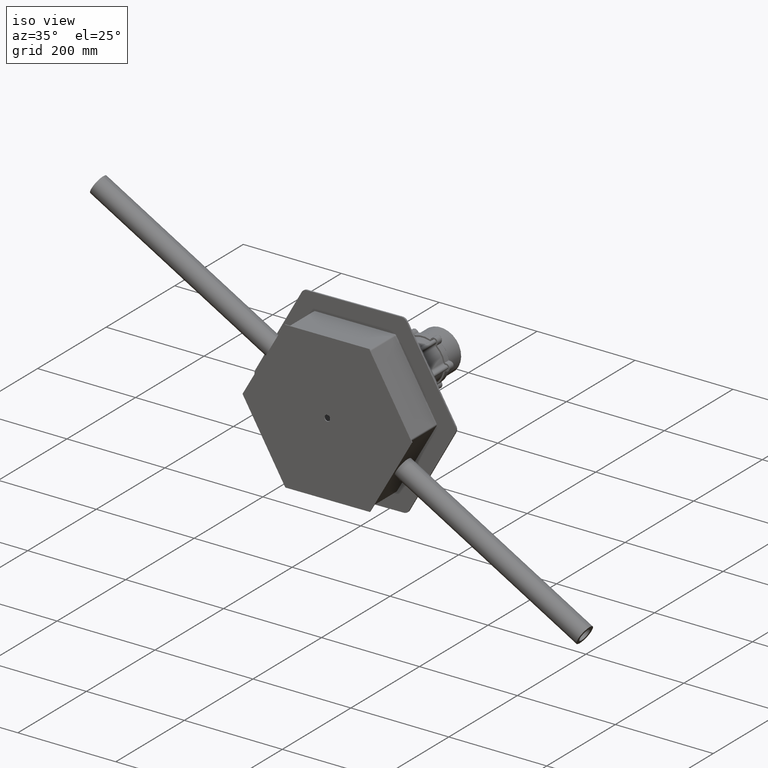
[diagram: clean part render]
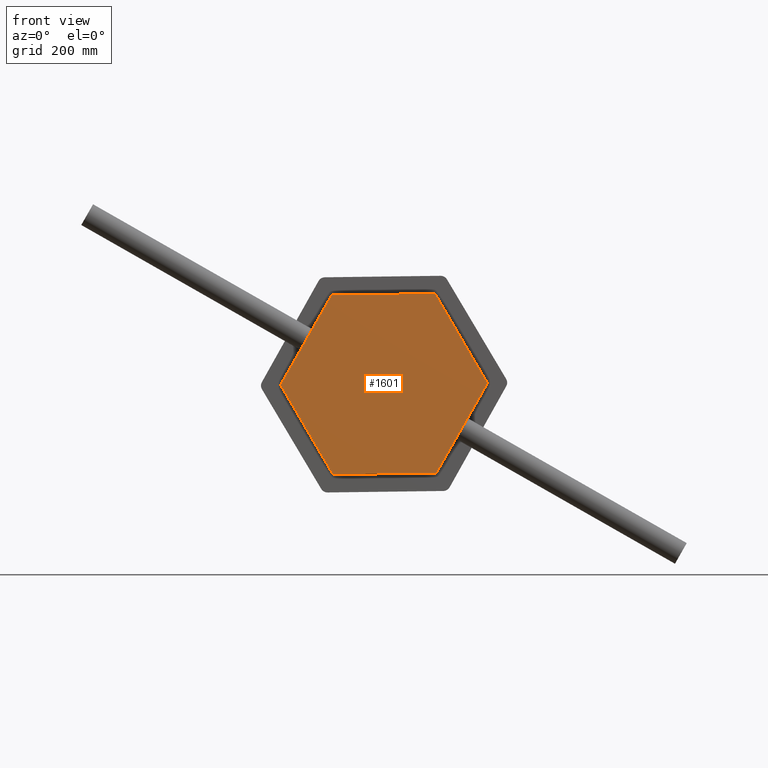
[diagram: tour spotlight — one face highlighted and labeled with its STEP entity id]
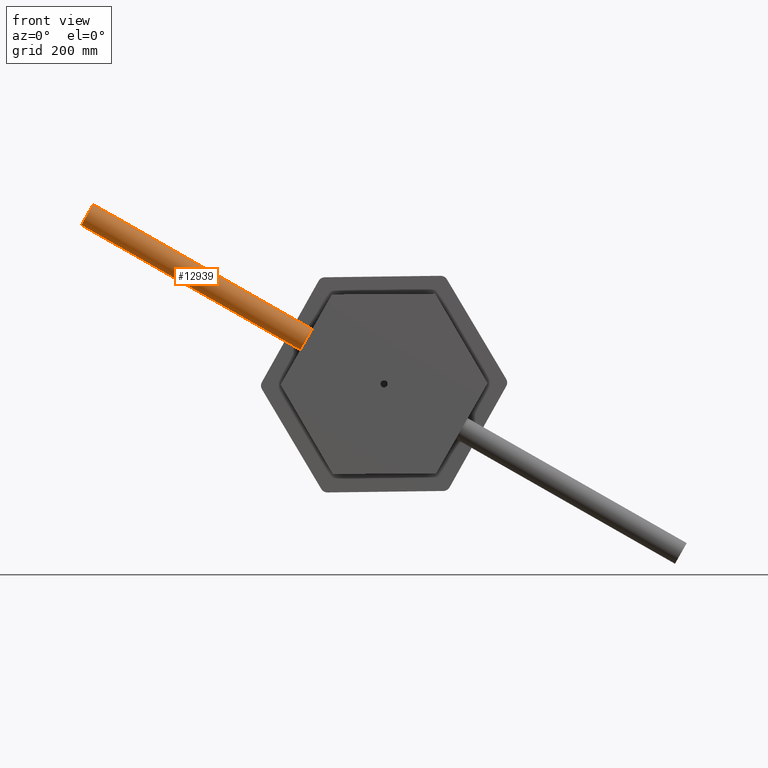
[diagram: tour spotlight — one face highlighted and labeled with its STEP entity id]
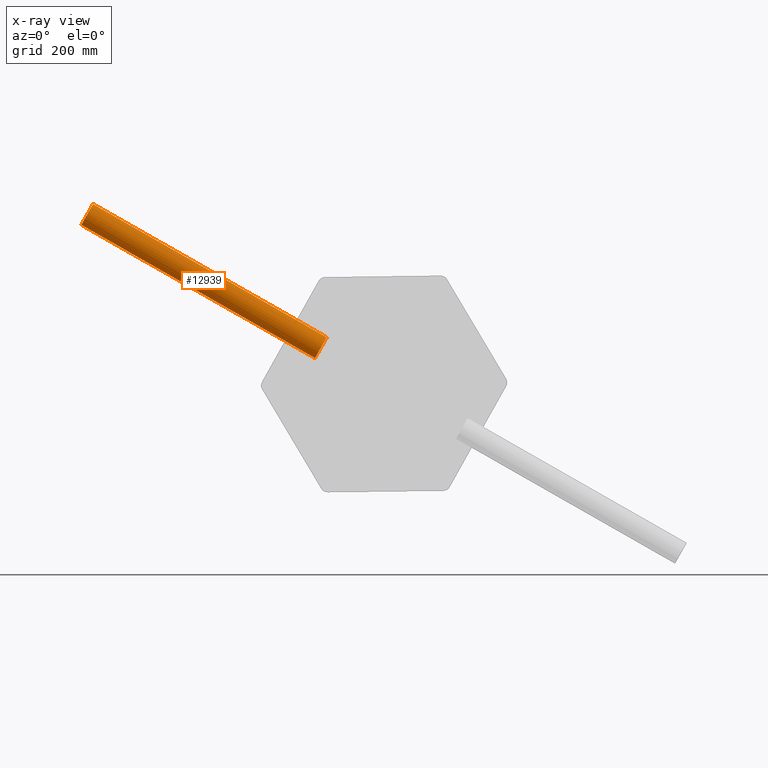
[diagram: x-ray of the same camera — body ghosted, this tour face saturated]
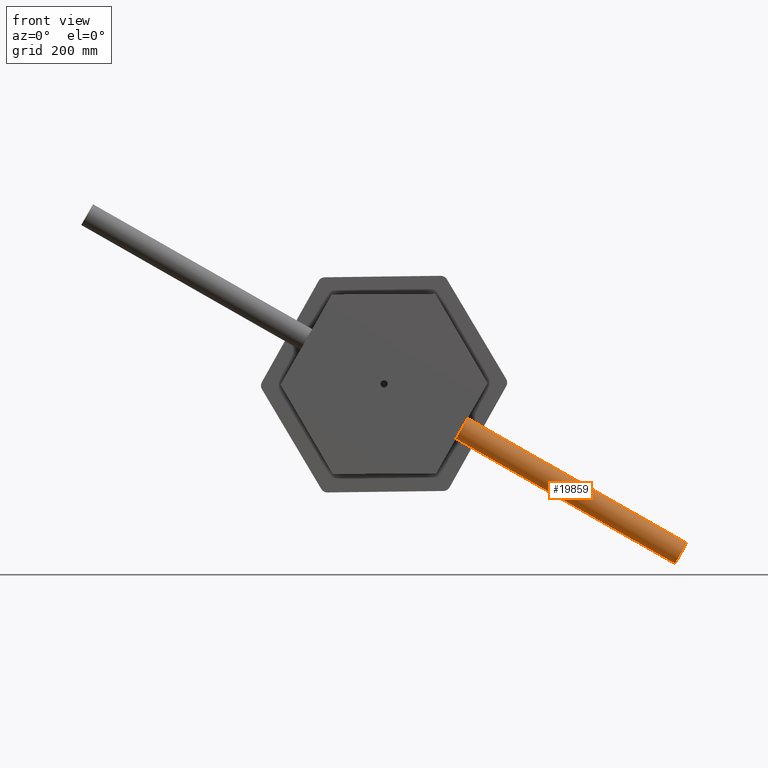
[diagram: tour spotlight — one face highlighted and labeled with its STEP entity id]
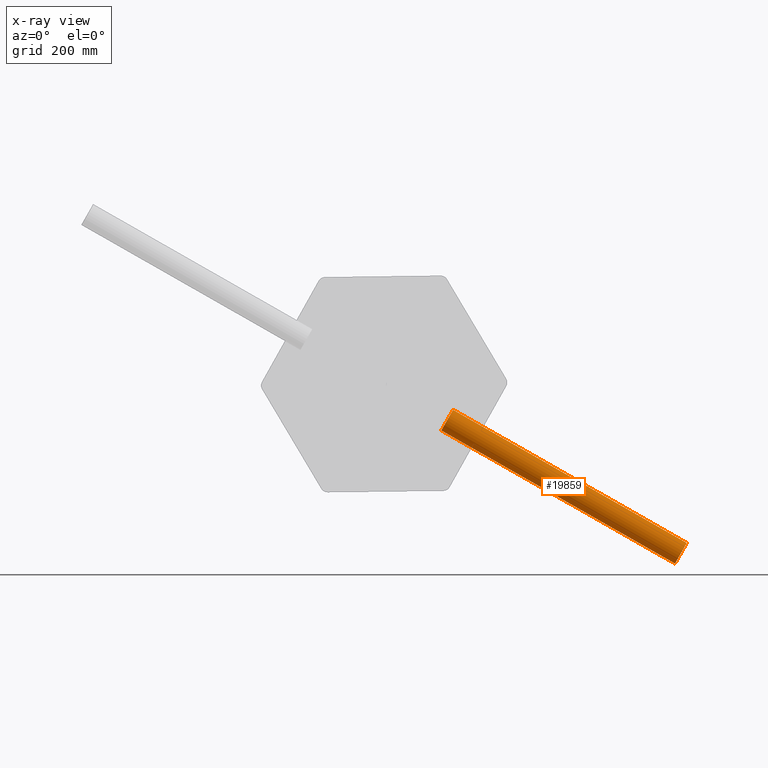
[diagram: x-ray of the same camera — body ghosted, this tour face saturated]
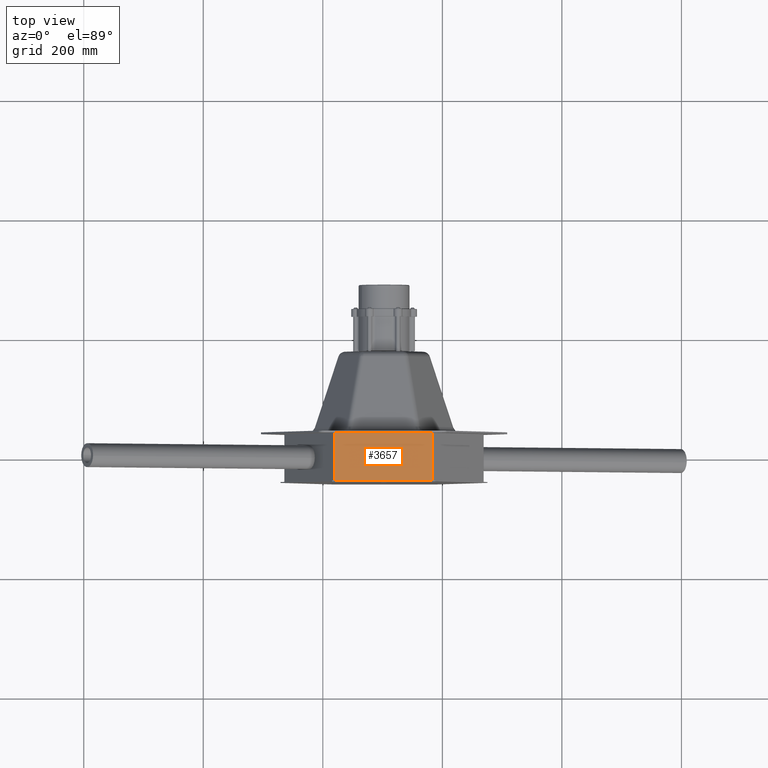
[diagram: tour spotlight — one face highlighted and labeled with its STEP entity id]
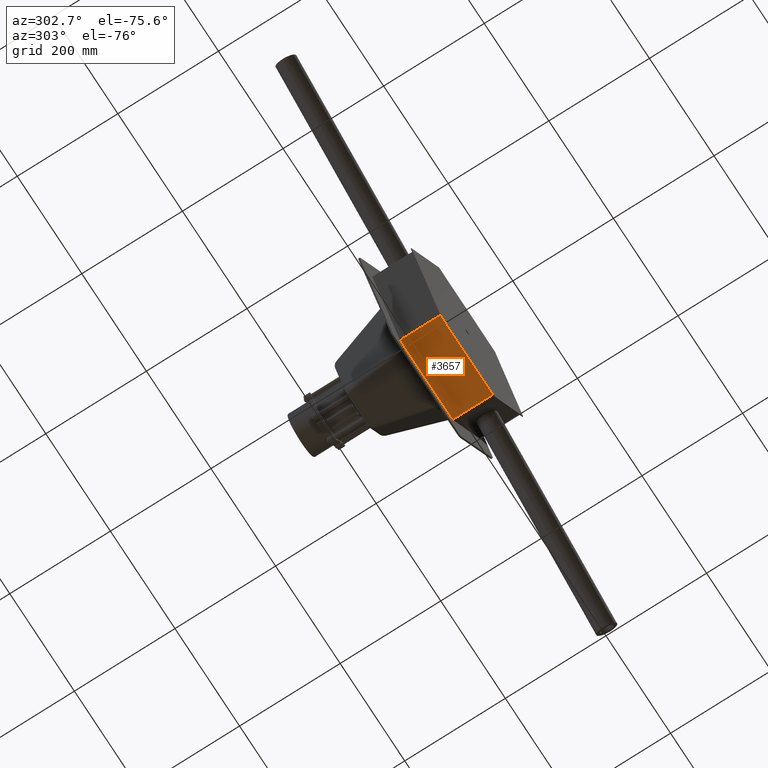
[diagram: tour spotlight — one face highlighted and labeled with its STEP entity id]
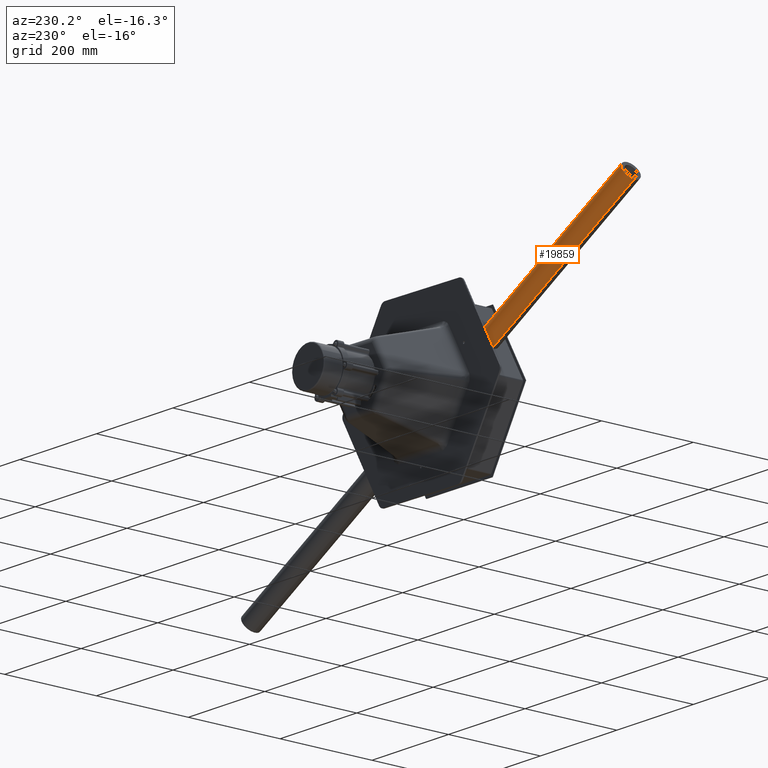
[diagram: tour spotlight — one face highlighted and labeled with its STEP entity id]
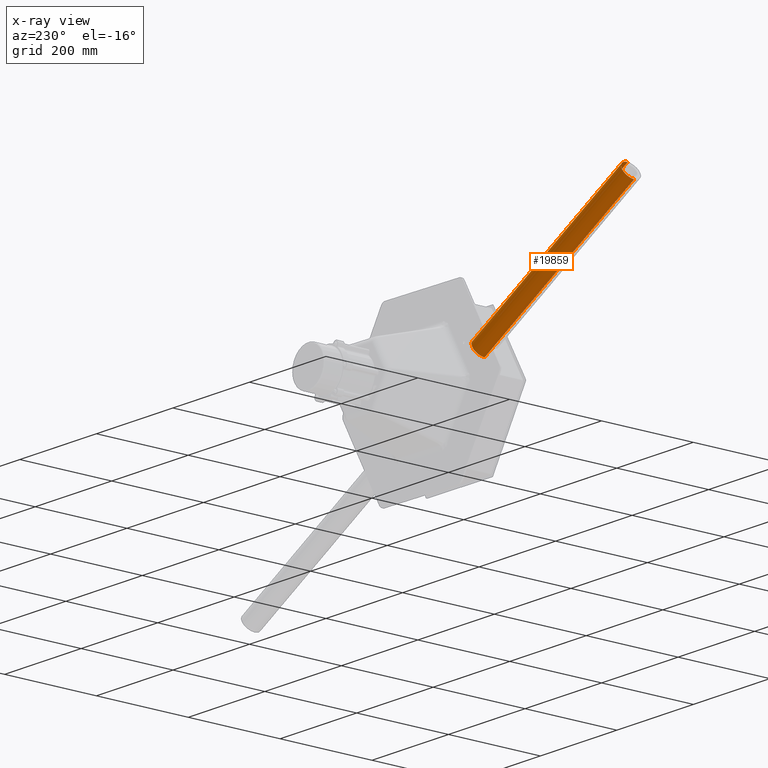
[diagram: x-ray of the same camera — body ghosted, this tour face saturated]
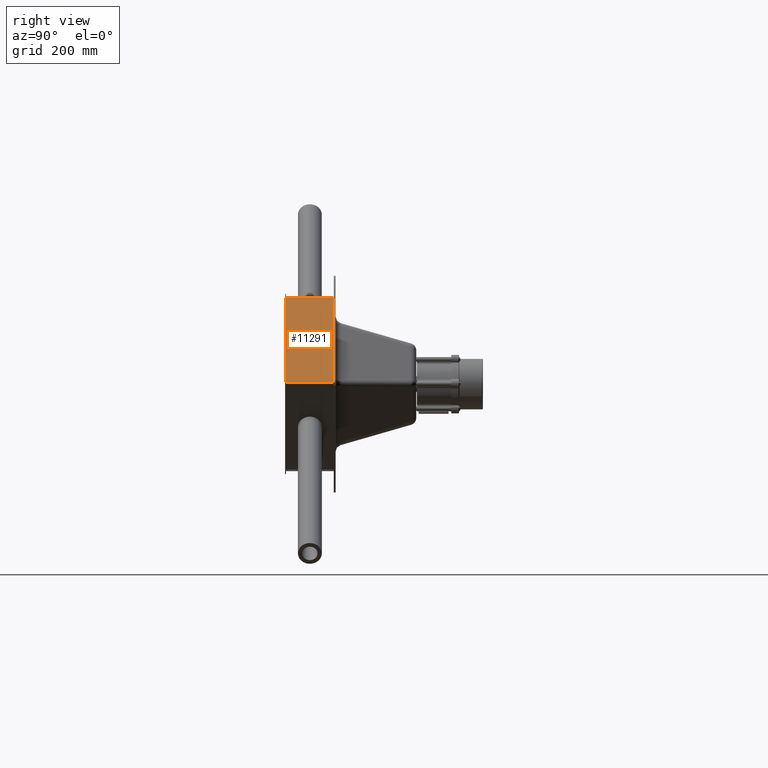
[diagram: tour spotlight — one face highlighted and labeled with its STEP entity id]
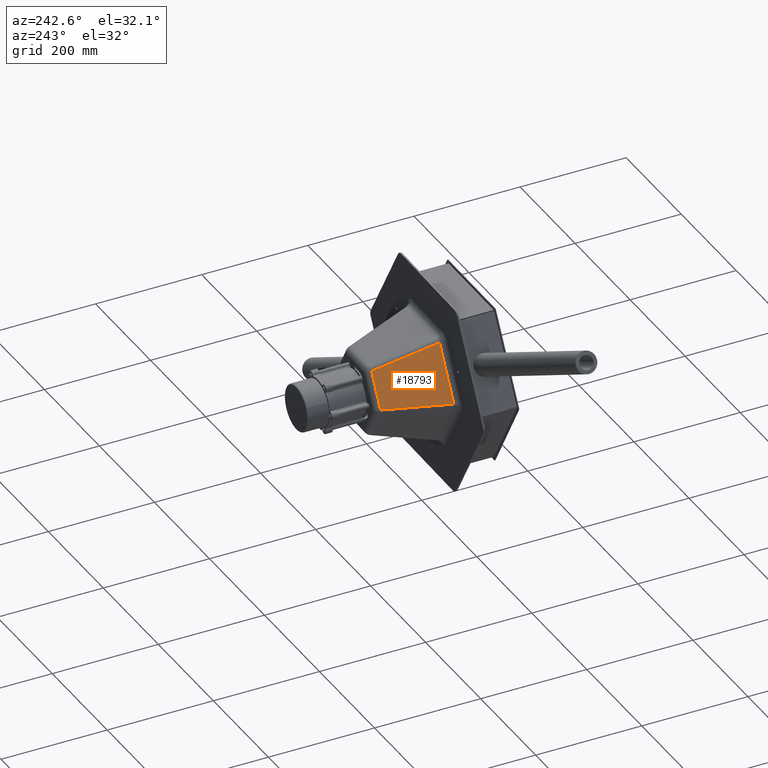
[diagram: tour spotlight — one face highlighted and labeled with its STEP entity id]
A machine part: a face-by-face anatomy tour. The part has 1507 B-rep faces; the first image is the clean iso view, then the 8 largest visible faces are spotlighted one at a time (largest first), each with its STEP entity span.

Face 1 — front view, entity #1601. In plain terms, the highlighted planar face has unit normal (0, -1, 0).
Definition (entity closure, byte-faithful):
#312 = VERTEX_POINT ( 'NONE', #700 ) ;
#415 = VECTOR ( 'NONE', #31654, 1000.000000000000000 ) ;
#700 = CARTESIAN_POINT ( 'NONE',  ( 173.1145889543301735, 1.252467087092951958, 1.500000000000000000 ) ) ;
#1329 = ORIENTED_EDGE ( 'NONE', *, *, #28425, .T. ) ;
#1601 = ADVANCED_FACE ( 'NONE', ( #6149, #25974 ), #9374, .T. ) ;
#1761 = EDGE_CURVE ( 'NONE', #25530, #30548, #21072, .T. ) ;
#2624 = CARTESIAN_POINT ( 'NONE',  ( -85.68579531361250190, -150.7332187034791673, 1.500000000000000000 ) ) ;
#3524 = DIRECTION ( 'NONE',  ( 1.000000000000000000, 0.0000000000000000000, 0.0000000000000000000 ) ) ;
#3597 = DIRECTION ( 'NONE',  ( 0.0000000000000000000, 0.0000000000000000000, 1.000000000000000000 ) ) ;
#3629 = CARTESIAN_POINT ( 'NONE',  ( 0.0000000000000000000, 0.0000000000000000000, 1.500000000000000000 ) ) ;
#3924 = DIRECTION ( 'NONE',  ( -0.5048689265369953327, 0.8631960188841130144, 0.0000000000000000000 ) ) ;
#4722 = CARTESIAN_POINT ( 'NONE',  ( -87.05746031819400343, 149.7604330572676474, 1.500000000000000000 ) ) ;
#4822 = LINE ( 'NONE', #2624, #5659 ) ;
#5058 = VECTOR ( 'NONE', #10942, 1000.000000000000114 ) ;
#5630 = LINE ( 'NONE', #25156, #32308 ) ;
#5659 = VECTOR ( 'NONE', #20749, 1000.000000000000114 ) ;
#5678 = CARTESIAN_POINT ( 'NONE',  ( -87.05746031819400343, 149.7604330572676474, 1.500000000000000000 ) ) ;
#6149 = FACE_OUTER_BOUND ( 'NONE', #18039, .T. ) ;
#6192 = CARTESIAN_POINT ( 'NONE',  ( 85.68579531361253032, 150.7332187034791673, 1.500000000000000000 ) ) ;
#6794 = ORIENTED_EDGE ( 'NONE', *, *, #28026, .T. ) ;
#7681 = ORIENTED_EDGE ( 'NONE', *, *, #1761, .F. ) ;
#7917 = ORIENTED_EDGE ( 'NONE', *, *, #24260, .F. ) ;
#8221 = VERTEX_POINT ( 'NONE', #8488 ) ;
#8488 = CARTESIAN_POINT ( 'NONE',  ( -173.1145889543301735, -1.252467087093037001, 1.500000000000000000 ) ) ;
#8946 = DIRECTION ( 'NONE',  ( 1.000000000000000000, 0.0000000000000000000, -0.0000000000000000000 ) ) ;
#9053 = LINE ( 'NONE', #18813, #415 ) ;
#9062 = DIRECTION ( 'NONE',  ( 0.0000000000000000000, 0.0000000000000000000, 1.000000000000000000 ) ) ;
#9140 = DIRECTION ( 'NONE',  ( 0.0000000000000000000, -0.0000000000000000000, 1.000000000000000000 ) ) ;
#9374 = PLANE ( 'NONE',  #26909 ) ;
#9402 = CARTESIAN_POINT ( 'NONE',  ( 0.0000000000000000000, 0.0000000000000000000, 1.500000000000000000 ) ) ;
#10202 = LINE ( 'NONE', #21103, #29931 ) ;
#10850 = VERTEX_POINT ( 'NONE', #4722 ) ;
#10901 = DIRECTION ( 'NONE',  ( -0.9999841440677316173, -0.005631306520363359158, -0.0000000000000000000 ) ) ;
#10927 = ORIENTED_EDGE ( 'NONE', *, *, #25354, .T. ) ;
#10942 = DIRECTION ( 'NONE',  ( -0.4951152175307385606, -0.8688273254044726057, 0.0000000000000000000 ) ) ;
#11114 = VERTEX_POINT ( 'NONE', #6192 ) ;
#11919 = CARTESIAN_POINT ( 'NONE',  ( 87.05746031819408870, -149.7604330572676474, 1.500000000000000000 ) ) ;
#12410 = AXIS2_PLACEMENT_3D ( 'NONE', #3629, #3597, #3524 ) ;
#14057 = ORIENTED_EDGE ( 'NONE', *, *, #19550, .T. ) ;
#16313 = CARTESIAN_POINT ( 'NONE',  ( -85.68579531361250190, -150.7332187034791673, 1.500000000000000000 ) ) ;
#16859 = ORIENTED_EDGE ( 'NONE', *, *, #32508, .T. ) ;
#17674 = ORIENTED_EDGE ( 'NONE', *, *, #28861, .T. ) ;
#18039 = EDGE_LOOP ( 'NONE', ( #6794, #14057, #17674, #1329, #16859, #10927 ) ) ;
#18176 = CIRCLE ( 'NONE', #23547, 6.000000000000002665 ) ;
#18813 = CARTESIAN_POINT ( 'NONE',  ( 87.05746031819408870, -149.7604330572676474, 1.500000000000000000 ) ) ;
#19162 = VECTOR ( 'NONE', #3924, 1000.000000000000000 ) ;
#19421 = CARTESIAN_POINT ( 'NONE',  ( 173.1145889543301735, 1.252467087092951958, 1.500000000000000000 ) ) ;
#19550 = EDGE_CURVE ( 'NONE', #10850, #8221, #27332, .T. ) ;
#20076 = CARTESIAN_POINT ( 'NONE',  ( -6.000000000000002665, 0.0000000000000000000, 1.500000000000000000 ) ) ;
#20749 = DIRECTION ( 'NONE',  ( 0.9999841440677316173, 0.005631306520363357423, 0.0000000000000000000 ) ) ;
#21072 = CIRCLE ( 'NONE', #12410, 6.000000000000002665 ) ;
#21103 = CARTESIAN_POINT ( 'NONE',  ( -87.05746031819400343, 149.7604330572676474, 1.500000000000000000 ) ) ;
#21172 = VERTEX_POINT ( 'NONE', #16313 ) ;
#22464 = EDGE_LOOP ( 'NONE', ( #7681, #7917 ) ) ;
#23547 = AXIS2_PLACEMENT_3D ( 'NONE', #24505, #9062, #27110 ) ;
#23764 = VERTEX_POINT ( 'NONE', #11919 ) ;
#24260 = EDGE_CURVE ( 'NONE', #30548, #25530, #18176, .T. ) ;
#24505 = CARTESIAN_POINT ( 'NONE',  ( 0.0000000000000000000, 0.0000000000000000000, 1.500000000000000000 ) ) ;
#25156 = CARTESIAN_POINT ( 'NONE',  ( -173.1145889543301735, -1.252467087093037001, 1.500000000000000000 ) ) ;
#25354 = EDGE_CURVE ( 'NONE', #312, #11114, #32880, .T. ) ;
#25530 = VERTEX_POINT ( 'NONE', #20076 ) ;
#25974 = FACE_BOUND ( 'NONE', #22464, .T. ) ;
#26909 = AXIS2_PLACEMENT_3D ( 'NONE', #9402, #9140, #8946 ) ;
#27110 = DIRECTION ( 'NONE',  ( 1.000000000000000000, 0.0000000000000000000, 0.0000000000000000000 ) ) ;
#27332 = LINE ( 'NONE', #5678, #5058 ) ;
#27870 = DIRECTION ( 'NONE',  ( 0.5048689265369956658, -0.8631960188841127923, 0.0000000000000000000 ) ) ;
#28026 = EDGE_CURVE ( 'NONE', #11114, #10850, #10202, .T. ) ;
#28425 = EDGE_CURVE ( 'NONE', #21172, #23764, #4822, .T. ) ;
#28861 = EDGE_CURVE ( 'NONE', #8221, #21172, #5630, .T. ) ;
#29931 = VECTOR ( 'NONE', #10901, 1000.000000000000114 ) ;
#30047 = CARTESIAN_POINT ( 'NONE',  ( 6.000000000000002665, 7.347880794884122694E-16, 1.500000000000000000 ) ) ;
#30548 = VERTEX_POINT ( 'NONE', #30047 ) ;
#31654 = DIRECTION ( 'NONE',  ( 0.4951152175307384495, 0.8688273254044727167, 0.0000000000000000000 ) ) ;
#32308 = VECTOR ( 'NONE', #27870, 1000.000000000000227 ) ;
#32508 = EDGE_CURVE ( 'NONE', #23764, #312, #9053, .T. ) ;
#32880 = LINE ( 'NONE', #19421, #19162 ) ;

Face 2 — front view, entity #12939. An x-ray twin of the same camera follows (body ghosted, this face saturated) — the face is partly hidden behind the body. In plain terms, the highlighted cylindrical surface (edge-blend (fillet) strip) has radius 20 mm, axis along (0.8688, -0, -0.4951).
Definition (entity closure, byte-faithful):
#1495 = DIRECTION ( 'NONE',  ( 1.000000000000000000, -7.632783294297947518E-17, -3.330669073875467649E-16 ) ) ;
#1514 = VERTEX_POINT ( 'NONE', #13346 ) ;
#2217 = VECTOR ( 'NONE', #5816, 1000.000000000000000 ) ;
#2707 = DIRECTION ( 'NONE',  ( 4.996003610813205418E-16, -2.983724378680108695E-16, -1.000000000000000000 ) ) ;
#4396 = AXIS2_PLACEMENT_3D ( 'NONE', #20592, #25820, #10267 ) ;
#5045 = AXIS2_PLACEMENT_3D ( 'NONE', #24814, #9380, #27420 ) ;
#5816 = DIRECTION ( 'NONE',  ( 4.996003610813205418E-16, -2.983724378680108695E-16, -1.000000000000000000 ) ) ;
#6263 = VECTOR ( 'NONE', #2707, 1000.000000000000000 ) ;
#7638 = EDGE_LOOP ( 'NONE', ( #18530, #25377, #9545, #11129 ) ) ;
#8149 = CARTESIAN_POINT ( 'NONE',  ( 20.00000000000000000, 6.562792259337033289E-14, 9.992007221626407286E-15 ) ) ;
#8433 = VERTEX_POINT ( 'NONE', #29789 ) ;
#9380 = DIRECTION ( 'NONE',  ( -4.996003610813205418E-16, 2.983724378680108695E-16, 1.000000000000000000 ) ) ;
#9545 = ORIENTED_EDGE ( 'NONE', *, *, #17151, .T. ) ;
#10267 = DIRECTION ( 'NONE',  ( -1.000000000000000000, 7.632783294297908075E-17, 0.0000000000000000000 ) ) ;
#11129 = ORIENTED_EDGE ( 'NONE', *, *, #15344, .T. ) ;
#11548 = EDGE_CURVE ( 'NONE', #8433, #24160, #16862, .T. ) ;
#12669 = EDGE_CURVE ( 'NONE', #1514, #8433, #15602, .T. ) ;
#12939 = ADVANCED_FACE ( 'NONE', ( #28115 ), #18811, .T. ) ;
#13346 = CARTESIAN_POINT ( 'NONE',  ( -20.00000000000022382, 6.623174231279415408E-14, 450.0000000000000000 ) ) ;
#15344 = EDGE_CURVE ( 'NONE', #30564, #24160, #29826, .T. ) ;
#15602 = CIRCLE ( 'NONE', #5045, 20.00000000000001066 ) ;
#16862 = LINE ( 'NONE', #26511, #2217 ) ;
#17061 = DIRECTION ( 'NONE',  ( -4.996003610813205418E-16, 2.983724378680108695E-16, 1.000000000000000000 ) ) ;
#17151 = EDGE_CURVE ( 'NONE', #1514, #30564, #20796, .T. ) ;
#18530 = ORIENTED_EDGE ( 'NONE', *, *, #11548, .F. ) ;
#18811 = CYLINDRICAL_SURFACE ( 'NONE', #4396, 20.00000000000001066 ) ;
#20592 = CARTESIAN_POINT ( 'NONE',  ( -2.220446049250313081E-13, 1.318389841742373392E-13, 450.0000000000000000 ) ) ;
#20796 = LINE ( 'NONE', #20818, #6263 ) ;
#20818 = CARTESIAN_POINT ( 'NONE',  ( -20.00000000000023448, 1.333655408330969294E-13, 450.0000000000000000 ) ) ;
#24160 = VERTEX_POINT ( 'NONE', #8149 ) ;
#24814 = CARTESIAN_POINT ( 'NONE',  ( -2.220446049250313081E-13, 1.318389841742373392E-13, 450.0000000000000000 ) ) ;
#24990 = CARTESIAN_POINT ( 'NONE',  ( -20.00000000000000000, 6.623174231279441913E-14, -9.992007221626399397E-15 ) ) ;
#25377 = ORIENTED_EDGE ( 'NONE', *, *, #12669, .F. ) ;
#25820 = DIRECTION ( 'NONE',  ( 4.996003610813205418E-16, -2.983724378680108695E-16, -1.000000000000000000 ) ) ;
#26511 = CARTESIAN_POINT ( 'NONE',  ( 19.99999999999979039, 1.327617211136724519E-13, 450.0000000000000000 ) ) ;
#27420 = DIRECTION ( 'NONE',  ( 1.000000000000000000, -7.632783294297908075E-17, 0.0000000000000000000 ) ) ;
#28115 = FACE_OUTER_BOUND ( 'NONE', #7638, .T. ) ;
#28527 = AXIS2_PLACEMENT_3D ( 'NONE', #32526, #17061, #1495 ) ;
#29789 = CARTESIAN_POINT ( 'NONE',  ( 19.99999999999977973, 6.562792259337005521E-14, 450.0000000000000000 ) ) ;
#29826 = CIRCLE ( 'NONE', #28527, 20.00000000000001066 ) ;
#30564 = VERTEX_POINT ( 'NONE', #24990 ) ;
#32526 = CARTESIAN_POINT ( 'NONE',  ( 0.0000000000000000000, 0.0000000000000000000, 0.0000000000000000000 ) ) ;

Face 3 — front view, entity #19859. An x-ray twin of the same camera follows (body ghosted, this face saturated) — the face is partly hidden behind the body. In plain terms, the highlighted cylindrical surface (edge-blend (fillet) strip) has radius 20 mm, axis along (-0.8688, 0, 0.4951).
Definition (entity closure, byte-faithful):
#1514 = VERTEX_POINT ( 'NONE', #13346 ) ;
#2139 = ORIENTED_EDGE ( 'NONE', *, *, #11548, .T. ) ;
#2217 = VECTOR ( 'NONE', #5816, 1000.000000000000000 ) ;
#2615 = ORIENTED_EDGE ( 'NONE', *, *, #10883, .F. ) ;
#2707 = DIRECTION ( 'NONE',  ( 4.996003610813205418E-16, -2.983724378680108695E-16, -1.000000000000000000 ) ) ;
#4728 = CARTESIAN_POINT ( 'NONE',  ( -2.220446049250313081E-13, 1.318389841742373392E-13, 450.0000000000000000 ) ) ;
#4818 = ORIENTED_EDGE ( 'NONE', *, *, #17151, .F. ) ;
#5661 = AXIS2_PLACEMENT_3D ( 'NONE', #15136, #33185, #17771 ) ;
#5816 = DIRECTION ( 'NONE',  ( 4.996003610813205418E-16, -2.983724378680108695E-16, -1.000000000000000000 ) ) ;
#6263 = VECTOR ( 'NONE', #2707, 1000.000000000000000 ) ;
#7348 = DIRECTION ( 'NONE',  ( 4.996003610813205418E-16, -2.983724378680108695E-16, -1.000000000000000000 ) ) ;
#8149 = CARTESIAN_POINT ( 'NONE',  ( 20.00000000000000000, 6.562792259337033289E-14, 9.992007221626407286E-15 ) ) ;
#8433 = VERTEX_POINT ( 'NONE', #29789 ) ;
#8674 = AXIS2_PLACEMENT_3D ( 'NONE', #13190, #31220, #15784 ) ;
#8779 = EDGE_CURVE ( 'NONE', #24160, #30564, #10254, .T. ) ;
#10254 = CIRCLE ( 'NONE', #8674, 20.00000000000001066 ) ;
#10883 = EDGE_CURVE ( 'NONE', #8433, #1514, #25813, .T. ) ;
#11548 = EDGE_CURVE ( 'NONE', #8433, #24160, #16862, .T. ) ;
#12357 = FACE_OUTER_BOUND ( 'NONE', #31330, .T. ) ;
#13190 = CARTESIAN_POINT ( 'NONE',  ( 0.0000000000000000000, 0.0000000000000000000, 0.0000000000000000000 ) ) ;
#13346 = CARTESIAN_POINT ( 'NONE',  ( -20.00000000000022382, 6.623174231279415408E-14, 450.0000000000000000 ) ) ;
#15136 = CARTESIAN_POINT ( 'NONE',  ( -2.220446049250313081E-13, 1.318389841742373392E-13, 450.0000000000000000 ) ) ;
#15784 = DIRECTION ( 'NONE',  ( 1.000000000000000000, -7.632783294297947518E-17, -3.330669073875467649E-16 ) ) ;
#15963 = ORIENTED_EDGE ( 'NONE', *, *, #8779, .T. ) ;
#16862 = LINE ( 'NONE', #26511, #2217 ) ;
#17151 = EDGE_CURVE ( 'NONE', #1514, #30564, #20796, .T. ) ;
#17771 = DIRECTION ( 'NONE',  ( 1.000000000000000000, -7.632783294297908075E-17, 0.0000000000000000000 ) ) ;
#19859 = ADVANCED_FACE ( 'NONE', ( #12357 ), #24472, .T. ) ;
#20223 = DIRECTION ( 'NONE',  ( -1.000000000000000000, 7.632783294297908075E-17, 0.0000000000000000000 ) ) ;
#20796 = LINE ( 'NONE', #20818, #6263 ) ;
#20818 = CARTESIAN_POINT ( 'NONE',  ( -20.00000000000023448, 1.333655408330969294E-13, 450.0000000000000000 ) ) ;
#24160 = VERTEX_POINT ( 'NONE', #8149 ) ;
#24472 = CYLINDRICAL_SURFACE ( 'NONE', #27159, 20.00000000000001066 ) ;
#24990 = CARTESIAN_POINT ( 'NONE',  ( -20.00000000000000000, 6.623174231279441913E-14, -9.992007221626399397E-15 ) ) ;
#25813 = CIRCLE ( 'NONE', #5661, 20.00000000000001066 ) ;
#26511 = CARTESIAN_POINT ( 'NONE',  ( 19.99999999999979039, 1.327617211136724519E-13, 450.0000000000000000 ) ) ;
#27159 = AXIS2_PLACEMENT_3D ( 'NONE', #4728, #7348, #20223 ) ;
#29789 = CARTESIAN_POINT ( 'NONE',  ( 19.99999999999977973, 6.562792259337005521E-14, 450.0000000000000000 ) ) ;
#30564 = VERTEX_POINT ( 'NONE', #24990 ) ;
#31220 = DIRECTION ( 'NONE',  ( -4.996003610813205418E-16, 2.983724378680108695E-16, 1.000000000000000000 ) ) ;
#31330 = EDGE_LOOP ( 'NONE', ( #2615, #2139, #15963, #4818 ) ) ;
#33185 = DIRECTION ( 'NONE',  ( -4.996003610813205418E-16, 2.983724378680108695E-16, 1.000000000000000000 ) ) ;

Face 4 — top view, entity #3657. In plain terms, the highlighted planar face has unit normal (0.0056, -0, -1).
Definition (entity closure, byte-faithful):
#1312 = AXIS2_PLACEMENT_3D ( 'NONE', #29947, #29366, #29292 ) ;
#2365 = VECTOR ( 'NONE', #31431, 999.9999999999998863 ) ;
#2460 = CARTESIAN_POINT ( 'NONE',  ( 211.5169739891072425, -39.99999999999999289, 285.0731395908187551 ) ) ;
#3657 = ADVANCED_FACE ( 'NONE', ( #11351 ), #30013, .F. ) ;
#5728 = DIRECTION ( 'NONE',  ( -2.397623950702040478E-17, -1.000000000000000000, -8.502476337541312578E-18 ) ) ;
#7553 = LINE ( 'NONE', #26018, #33387 ) ;
#8276 = LINE ( 'NONE', #26415, #14315 ) ;
#11351 = FACE_OUTER_BOUND ( 'NONE', #20905, .T. ) ;
#11358 = VERTEX_POINT ( 'NONE', #30666 ) ;
#12834 = VERTEX_POINT ( 'NONE', #22739 ) ;
#13299 = CARTESIAN_POINT ( 'NONE',  ( -35.98302601089486785, -39.99999999999992895, -143.6094352824775910 ) ) ;
#14315 = VECTOR ( 'NONE', #5728, 1000.000000000000000 ) ;
#19337 = ORIENTED_EDGE ( 'NONE', *, *, #30348, .F. ) ;
#19730 = ORIENTED_EDGE ( 'NONE', *, *, #23472, .F. ) ;
#19858 = CARTESIAN_POINT ( 'NONE',  ( 129.9754169064671601, -39.99999999999997158, 143.8390197954096834 ) ) ;
#20459 = EDGE_CURVE ( 'NONE', #11358, #28226, #8276, .T. ) ;
#20905 = EDGE_LOOP ( 'NONE', ( #19730, #22907, #22522, #19337 ) ) ;
#20914 = VERTEX_POINT ( 'NONE', #2460 ) ;
#22522 = ORIENTED_EDGE ( 'NONE', *, *, #24602, .F. ) ;
#22739 = CARTESIAN_POINT ( 'NONE',  ( 211.5169739891072140, 39.99999999999999289, 285.0731395908187551 ) ) ;
#22907 = ORIENTED_EDGE ( 'NONE', *, *, #20459, .T. ) ;
#22975 = LINE ( 'NONE', #13299, #30654 ) ;
#23472 = EDGE_CURVE ( 'NONE', #11358, #12834, #29915, .T. ) ;
#23626 = CARTESIAN_POINT ( 'NONE',  ( -35.98302601089486785, 40.00000000000005684, -143.6094352824775626 ) ) ;
#24602 = EDGE_CURVE ( 'NONE', #20914, #28226, #22975, .T. ) ;
#26018 = CARTESIAN_POINT ( 'NONE',  ( 211.5169739891072425, -39.99999999999999289, 285.0731395908187551 ) ) ;
#26415 = CARTESIAN_POINT ( 'NONE',  ( 129.9754169064671601, 3.469446951953614189E-15, 143.8390197954096834 ) ) ;
#28226 = VERTEX_POINT ( 'NONE', #19858 ) ;
#28500 = DIRECTION ( 'NONE',  ( -2.397623950702040478E-17, -1.000000000000000000, -8.502476337541312578E-18 ) ) ;
#29292 = DIRECTION ( 'NONE',  ( -0.5000000000000036637, -1.935148025689714016E-17, -0.8660254037844364872 ) ) ;
#29366 = DIRECTION ( 'NONE',  ( 0.8660254037844365982, 1.651279433152898003E-17, -0.5000000000000037748 ) ) ;
#29915 = LINE ( 'NONE', #23626, #2365 ) ;
#29947 = CARTESIAN_POINT ( 'NONE',  ( 153.4681800372651708, 0.0000000000000000000, 184.5296791481323453 ) ) ;
#30013 = PLANE ( 'NONE',  #1312 ) ;
#30348 = EDGE_CURVE ( 'NONE', #12834, #20914, #7553, .T. ) ;
#30654 = VECTOR ( 'NONE', #31326, 999.9999999999998863 ) ;
#30666 = CARTESIAN_POINT ( 'NONE',  ( 129.9754169064671316, 39.99999999999997868, 143.8390197954097403 ) ) ;
#31326 = DIRECTION ( 'NONE',  ( -0.5000000000000036637, 1.068102270868705611E-16, -0.8660254037844364872 ) ) ;
#31431 = DIRECTION ( 'NONE',  ( 0.5000000000000036637, -1.068102270868705611E-16, 0.8660254037844364872 ) ) ;
#33387 = VECTOR ( 'NONE', #28500, 1000.000000000000000 ) ;

Face 5 — auxiliary view, entity #3657. In plain terms, the highlighted planar face has unit normal (-0.0056, 0, 1).
Definition (entity closure, byte-faithful):
#1312 = AXIS2_PLACEMENT_3D ( 'NONE', #29947, #29366, #29292 ) ;
#2365 = VECTOR ( 'NONE', #31431, 999.9999999999998863 ) ;
#2460 = CARTESIAN_POINT ( 'NONE',  ( 211.5169739891072425, -39.99999999999999289, 285.0731395908187551 ) ) ;
#3657 = ADVANCED_FACE ( 'NONE', ( #11351 ), #30013, .F. ) ;
#5728 = DIRECTION ( 'NONE',  ( -2.397623950702040478E-17, -1.000000000000000000, -8.502476337541312578E-18 ) ) ;
#7553 = LINE ( 'NONE', #26018, #33387 ) ;
#8276 = LINE ( 'NONE', #26415, #14315 ) ;
#11351 = FACE_OUTER_BOUND ( 'NONE', #20905, .T. ) ;
#11358 = VERTEX_POINT ( 'NONE', #30666 ) ;
#12834 = VERTEX_POINT ( 'NONE', #22739 ) ;
#13299 = CARTESIAN_POINT ( 'NONE',  ( -35.98302601089486785, -39.99999999999992895, -143.6094352824775910 ) ) ;
#14315 = VECTOR ( 'NONE', #5728, 1000.000000000000000 ) ;
#19337 = ORIENTED_EDGE ( 'NONE', *, *, #30348, .F. ) ;
#19730 = ORIENTED_EDGE ( 'NONE', *, *, #23472, .F. ) ;
#19858 = CARTESIAN_POINT ( 'NONE',  ( 129.9754169064671601, -39.99999999999997158, 143.8390197954096834 ) ) ;
#20459 = EDGE_CURVE ( 'NONE', #11358, #28226, #8276, .T. ) ;
#20905 = EDGE_LOOP ( 'NONE', ( #19730, #22907, #22522, #19337 ) ) ;
#20914 = VERTEX_POINT ( 'NONE', #2460 ) ;
#22522 = ORIENTED_EDGE ( 'NONE', *, *, #24602, .F. ) ;
#22739 = CARTESIAN_POINT ( 'NONE',  ( 211.5169739891072140, 39.99999999999999289, 285.0731395908187551 ) ) ;
#22907 = ORIENTED_EDGE ( 'NONE', *, *, #20459, .T. ) ;
#22975 = LINE ( 'NONE', #13299, #30654 ) ;
#23472 = EDGE_CURVE ( 'NONE', #11358, #12834, #29915, .T. ) ;
#23626 = CARTESIAN_POINT ( 'NONE',  ( -35.98302601089486785, 40.00000000000005684, -143.6094352824775626 ) ) ;
#24602 = EDGE_CURVE ( 'NONE', #20914, #28226, #22975, .T. ) ;
#26018 = CARTESIAN_POINT ( 'NONE',  ( 211.5169739891072425, -39.99999999999999289, 285.0731395908187551 ) ) ;
#26415 = CARTESIAN_POINT ( 'NONE',  ( 129.9754169064671601, 3.469446951953614189E-15, 143.8390197954096834 ) ) ;
#28226 = VERTEX_POINT ( 'NONE', #19858 ) ;
#28500 = DIRECTION ( 'NONE',  ( -2.397623950702040478E-17, -1.000000000000000000, -8.502476337541312578E-18 ) ) ;
#29292 = DIRECTION ( 'NONE',  ( -0.5000000000000036637, -1.935148025689714016E-17, -0.8660254037844364872 ) ) ;
#29366 = DIRECTION ( 'NONE',  ( 0.8660254037844365982, 1.651279433152898003E-17, -0.5000000000000037748 ) ) ;
#29915 = LINE ( 'NONE', #23626, #2365 ) ;
#29947 = CARTESIAN_POINT ( 'NONE',  ( 153.4681800372651708, 0.0000000000000000000, 184.5296791481323453 ) ) ;
#30013 = PLANE ( 'NONE',  #1312 ) ;
#30348 = EDGE_CURVE ( 'NONE', #12834, #20914, #7553, .T. ) ;
#30654 = VECTOR ( 'NONE', #31326, 999.9999999999998863 ) ;
#30666 = CARTESIAN_POINT ( 'NONE',  ( 129.9754169064671316, 39.99999999999997868, 143.8390197954097403 ) ) ;
#31326 = DIRECTION ( 'NONE',  ( -0.5000000000000036637, 1.068102270868705611E-16, -0.8660254037844364872 ) ) ;
#31431 = DIRECTION ( 'NONE',  ( 0.5000000000000036637, -1.068102270868705611E-16, 0.8660254037844364872 ) ) ;
#33387 = VECTOR ( 'NONE', #28500, 1000.000000000000000 ) ;

Face 6 — auxiliary view, entity #19859. An x-ray twin of the same camera follows (body ghosted, this face saturated) — the face is partly hidden behind the body. In plain terms, the highlighted cylindrical surface (edge-blend (fillet) strip) has radius 20 mm, axis along (0.8688, -0, -0.4951).
Definition (entity closure, byte-faithful):
#1514 = VERTEX_POINT ( 'NONE', #13346 ) ;
#2139 = ORIENTED_EDGE ( 'NONE', *, *, #11548, .T. ) ;
#2217 = VECTOR ( 'NONE', #5816, 1000.000000000000000 ) ;
#2615 = ORIENTED_EDGE ( 'NONE', *, *, #10883, .F. ) ;
#2707 = DIRECTION ( 'NONE',  ( 4.996003610813205418E-16, -2.983724378680108695E-16, -1.000000000000000000 ) ) ;
#4728 = CARTESIAN_POINT ( 'NONE',  ( -2.220446049250313081E-13, 1.318389841742373392E-13, 450.0000000000000000 ) ) ;
#4818 = ORIENTED_EDGE ( 'NONE', *, *, #17151, .F. ) ;
#5661 = AXIS2_PLACEMENT_3D ( 'NONE', #15136, #33185, #17771 ) ;
#5816 = DIRECTION ( 'NONE',  ( 4.996003610813205418E-16, -2.983724378680108695E-16, -1.000000000000000000 ) ) ;
#6263 = VECTOR ( 'NONE', #2707, 1000.000000000000000 ) ;
#7348 = DIRECTION ( 'NONE',  ( 4.996003610813205418E-16, -2.983724378680108695E-16, -1.000000000000000000 ) ) ;
#8149 = CARTESIAN_POINT ( 'NONE',  ( 20.00000000000000000, 6.562792259337033289E-14, 9.992007221626407286E-15 ) ) ;
#8433 = VERTEX_POINT ( 'NONE', #29789 ) ;
#8674 = AXIS2_PLACEMENT_3D ( 'NONE', #13190, #31220, #15784 ) ;
#8779 = EDGE_CURVE ( 'NONE', #24160, #30564, #10254, .T. ) ;
#10254 = CIRCLE ( 'NONE', #8674, 20.00000000000001066 ) ;
#10883 = EDGE_CURVE ( 'NONE', #8433, #1514, #25813, .T. ) ;
#11548 = EDGE_CURVE ( 'NONE', #8433, #24160, #16862, .T. ) ;
#12357 = FACE_OUTER_BOUND ( 'NONE', #31330, .T. ) ;
#13190 = CARTESIAN_POINT ( 'NONE',  ( 0.0000000000000000000, 0.0000000000000000000, 0.0000000000000000000 ) ) ;
#13346 = CARTESIAN_POINT ( 'NONE',  ( -20.00000000000022382, 6.623174231279415408E-14, 450.0000000000000000 ) ) ;
#15136 = CARTESIAN_POINT ( 'NONE',  ( -2.220446049250313081E-13, 1.318389841742373392E-13, 450.0000000000000000 ) ) ;
#15784 = DIRECTION ( 'NONE',  ( 1.000000000000000000, -7.632783294297947518E-17, -3.330669073875467649E-16 ) ) ;
#15963 = ORIENTED_EDGE ( 'NONE', *, *, #8779, .T. ) ;
#16862 = LINE ( 'NONE', #26511, #2217 ) ;
#17151 = EDGE_CURVE ( 'NONE', #1514, #30564, #20796, .T. ) ;
#17771 = DIRECTION ( 'NONE',  ( 1.000000000000000000, -7.632783294297908075E-17, 0.0000000000000000000 ) ) ;
#19859 = ADVANCED_FACE ( 'NONE', ( #12357 ), #24472, .T. ) ;
#20223 = DIRECTION ( 'NONE',  ( -1.000000000000000000, 7.632783294297908075E-17, 0.0000000000000000000 ) ) ;
#20796 = LINE ( 'NONE', #20818, #6263 ) ;
#20818 = CARTESIAN_POINT ( 'NONE',  ( -20.00000000000023448, 1.333655408330969294E-13, 450.0000000000000000 ) ) ;
#24160 = VERTEX_POINT ( 'NONE', #8149 ) ;
#24472 = CYLINDRICAL_SURFACE ( 'NONE', #27159, 20.00000000000001066 ) ;
#24990 = CARTESIAN_POINT ( 'NONE',  ( -20.00000000000000000, 6.623174231279441913E-14, -9.992007221626399397E-15 ) ) ;
#25813 = CIRCLE ( 'NONE', #5661, 20.00000000000001066 ) ;
#26511 = CARTESIAN_POINT ( 'NONE',  ( 19.99999999999979039, 1.327617211136724519E-13, 450.0000000000000000 ) ) ;
#27159 = AXIS2_PLACEMENT_3D ( 'NONE', #4728, #7348, #20223 ) ;
#29789 = CARTESIAN_POINT ( 'NONE',  ( 19.99999999999977973, 6.562792259337005521E-14, 450.0000000000000000 ) ) ;
#30564 = VERTEX_POINT ( 'NONE', #24990 ) ;
#31220 = DIRECTION ( 'NONE',  ( -4.996003610813205418E-16, 2.983724378680108695E-16, 1.000000000000000000 ) ) ;
#31330 = EDGE_LOOP ( 'NONE', ( #2615, #2139, #15963, #4818 ) ) ;
#33185 = DIRECTION ( 'NONE',  ( -4.996003610813205418E-16, 2.983724378680108695E-16, 1.000000000000000000 ) ) ;

Face 7 — right view, entity #11291. In plain terms, the highlighted planar face has unit normal (-0.8632, -0, -0.5049).
Definition (entity closure, byte-faithful):
#267 = ORIENTED_EDGE ( 'NONE', *, *, #28699, .T. ) ;
#620 = CARTESIAN_POINT ( 'NONE',  ( 129.9754169064671885, -39.99999999999999289, 140.1024197954097303 ) ) ;
#971 = VERTEX_POINT ( 'NONE', #3319 ) ;
#1291 = VECTOR ( 'NONE', #16997, 1000.000000000000114 ) ;
#1916 = PLANE ( 'NONE',  #18247 ) ;
#2754 = VECTOR ( 'NONE', #9161, 1000.000000000000000 ) ;
#3304 = EDGE_CURVE ( 'NONE', #5019, #971, #27918, .T. ) ;
#3319 = CARTESIAN_POINT ( 'NONE',  ( 211.5169739891061909, -39.99999999999996447, -1.131699999999902229 ) ) ;
#4343 = DIRECTION ( 'NONE',  ( -2.397623950702040478E-17, -1.000000000000000000, -8.502476337541312578E-18 ) ) ;
#5019 = VERTEX_POINT ( 'NONE', #620 ) ;
#6520 = CARTESIAN_POINT ( 'NONE',  ( 211.5169739891062761, 0.0000000000000000000, -1.131699999999957740 ) ) ;
#6942 = EDGE_LOOP ( 'NONE', ( #7112, #267, #32115, #14077 ) ) ;
#7112 = ORIENTED_EDGE ( 'NONE', *, *, #31685, .F. ) ;
#7290 = VECTOR ( 'NONE', #7829, 1000.000000000000114 ) ;
#7829 = DIRECTION ( 'NONE',  ( 0.4999999999999977240, 1.307864665938909412E-16, -0.8660254037844398178 ) ) ;
#8477 = CARTESIAN_POINT ( 'NONE',  ( 294.7627788023240214, -39.99999999999992895, -145.3176634534557650 ) ) ;
#9161 = DIRECTION ( 'NONE',  ( -2.397623950702040478E-17, -1.000000000000000000, -8.502476337541312578E-18 ) ) ;
#10900 = CARTESIAN_POINT ( 'NONE',  ( 129.9754169064671885, 39.99999999999997868, 140.1024197954097303 ) ) ;
#11212 = EDGE_CURVE ( 'NONE', #13659, #5019, #12051, .T. ) ;
#11291 = ADVANCED_FACE ( 'NONE', ( #23315 ), #1916, .F. ) ;
#12051 = LINE ( 'NONE', #19836, #24961 ) ;
#13659 = VERTEX_POINT ( 'NONE', #10900 ) ;
#14077 = ORIENTED_EDGE ( 'NONE', *, *, #11212, .F. ) ;
#14910 = VERTEX_POINT ( 'NONE', #33117 ) ;
#16997 = DIRECTION ( 'NONE',  ( -0.4999999999999977240, -1.307864665938909412E-16, 0.8660254037844398178 ) ) ;
#17603 = DIRECTION ( 'NONE',  ( 0.4999999999999977240, 4.624759250123283875E-18, -0.8660254037844399289 ) ) ;
#18247 = AXIS2_PLACEMENT_3D ( 'NONE', #27883, #33036, #17603 ) ;
#19836 = CARTESIAN_POINT ( 'NONE',  ( 129.9754169064671885, 0.0000000000000000000, 140.1024197954097303 ) ) ;
#21180 = LINE ( 'NONE', #29971, #1291 ) ;
#23315 = FACE_OUTER_BOUND ( 'NONE', #6942, .T. ) ;
#23414 = LINE ( 'NONE', #6520, #2754 ) ;
#24961 = VECTOR ( 'NONE', #4343, 1000.000000000000000 ) ;
#27883 = CARTESIAN_POINT ( 'NONE',  ( 105.3115727541663063, 3.469446951953614189E-15, 182.8214509771556209 ) ) ;
#27918 = LINE ( 'NONE', #8477, #7290 ) ;
#28699 = EDGE_CURVE ( 'NONE', #14910, #971, #23414, .T. ) ;
#29971 = CARTESIAN_POINT ( 'NONE',  ( 294.7627788023240214, 40.00000000000007105, -145.3176634534557650 ) ) ;
#31685 = EDGE_CURVE ( 'NONE', #14910, #13659, #21180, .T. ) ;
#32115 = ORIENTED_EDGE ( 'NONE', *, *, #3304, .F. ) ;
#33036 = DIRECTION ( 'NONE',  ( 0.8660254037844399289, 2.501527066907039738E-17, 0.4999999999999977240 ) ) ;
#33117 = CARTESIAN_POINT ( 'NONE',  ( 211.5169739891061909, 40.00000000000000711, -1.131699999999902229 ) ) ;

Face 8 — auxiliary view, entity #18793. In plain terms, the highlighted planar face has unit normal (-0.8387, 0.2752, 0.4699).
Definition (entity closure, byte-faithful):
#977 = ORIENTED_EDGE ( 'NONE', *, *, #19177, .T. ) ;
#2369 = CARTESIAN_POINT ( 'NONE',  ( 33.80503459952079481, -58.55203747799378533, 129.3021738684422814 ) ) ;
#2712 = CARTESIAN_POINT ( 'NONE',  ( 48.34906166406025108, -83.74303130043303156, 27.67808602507800586 ) ) ;
#2828 = LINE ( 'NONE', #9303, #29564 ) ;
#4559 = ORIENTED_EDGE ( 'NONE', *, *, #22639, .T. ) ;
#5354 = DIRECTION ( 'NONE',  ( 0.8660254037844387076, 0.4999999999999999445, -1.479114197289396040E-31 ) ) ;
#5360 = LINE ( 'NONE', #8894, #18319 ) ;
#6886 = VERTEX_POINT ( 'NONE', #12283 ) ;
#7129 = CARTESIAN_POINT ( 'NONE',  ( 96.46522126478821235, -61.24482302829392921, 11.69782613155778073 ) ) ;
#8737 = EDGE_CURVE ( 'NONE', #9214, #10484, #30794, .T. ) ;
#8894 = CARTESIAN_POINT ( 'NONE',  ( 89.74713911652986553, -57.36613649155891892, 35.16859414319462473 ) ) ;
#9214 = VERTEX_POINT ( 'NONE', #33108 ) ;
#9303 = CARTESIAN_POINT ( 'NONE',  ( 4.806961960390540689, -106.4063706376704488, 35.16859414319463895 ) ) ;
#9622 = LINE ( 'NONE', #10029, #29362 ) ;
#10029 = CARTESIAN_POINT ( 'NONE',  ( 97.71001884521044190, -60.52613881015056307, 11.69782613155779316 ) ) ;
#10484 = VERTEX_POINT ( 'NONE', #18575 ) ;
#12283 = CARTESIAN_POINT ( 'NONE',  ( 4.806961960390542465, -114.1637437111404125, 11.69782613155779316 ) ) ;
#12850 = DIRECTION ( 'NONE',  ( -0.8660254037844385966, -0.4999999999999998890, -1.156741468195891373E-18 ) ) ;
#13058 = AXIS2_PLACEMENT_3D ( 'NONE', #2712, #20822, #5354 ) ;
#16648 = DIRECTION ( 'NONE',  ( -0.2717725502388411707, 0.1569079550387466881, 0.9494838464040530335 ) ) ;
#17064 = VECTOR ( 'NONE', #12850, 1000.000000000000227 ) ;
#17093 = FACE_OUTER_BOUND ( 'NONE', #33004, .T. ) ;
#17432 = ORIENTED_EDGE ( 'NONE', *, *, #21252, .T. ) ;
#17503 = DIRECTION ( 'NONE',  ( 8.673617379884034239E-17, -0.3138159100774927657, -0.9494838464040529225 ) ) ;
#18319 = VECTOR ( 'NONE', #16648, 999.9999999999998863 ) ;
#18575 = CARTESIAN_POINT ( 'NONE',  ( 4.806961960390534472, -75.29408252217595532, 129.3021738684422246 ) ) ;
#18793 = ADVANCED_FACE ( 'NONE', ( #17093 ), #31716, .T. ) ;
#19177 = EDGE_CURVE ( 'NONE', #6886, #19799, #9622, .T. ) ;
#19799 = VERTEX_POINT ( 'NONE', #7129 ) ;
#20822 = DIRECTION ( 'NONE',  ( 0.4806961960390564448, -0.8325902345447352415, 0.2751811557035179212 ) ) ;
#21252 = EDGE_CURVE ( 'NONE', #19799, #9214, #5360, .T. ) ;
#22639 = EDGE_CURVE ( 'NONE', #10484, #6886, #2828, .T. ) ;
#28049 = DIRECTION ( 'NONE',  ( 0.8660254037844385966, 0.4999999999999998890, 2.943941630481229831E-18 ) ) ;
#29032 = ORIENTED_EDGE ( 'NONE', *, *, #8737, .T. ) ;
#29362 = VECTOR ( 'NONE', #28049, 1000.000000000000227 ) ;
#29564 = VECTOR ( 'NONE', #17503, 999.9999999999998863 ) ;
#30794 = LINE ( 'NONE', #2369, #17064 ) ;
#31716 = PLANE ( 'NONE',  #13058 ) ;
#33004 = EDGE_LOOP ( 'NONE', ( #4559, #977, #17432, #29032 ) ) ;
#33108 = CARTESIAN_POINT ( 'NONE',  ( 62.80310723865100897, -41.80999243381170061, 129.3021738684422246 ) ) ;